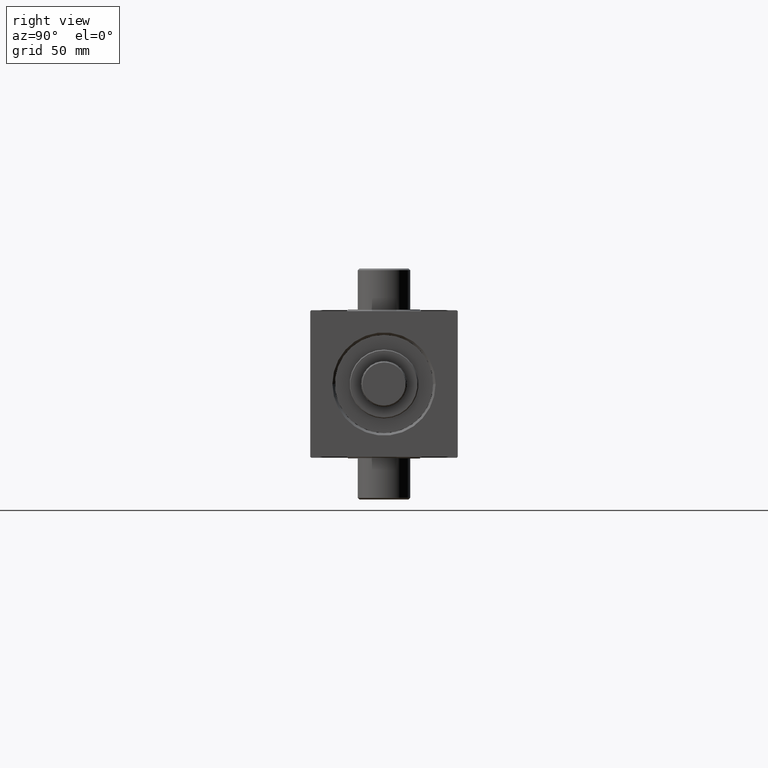
[diagram: clean part render]
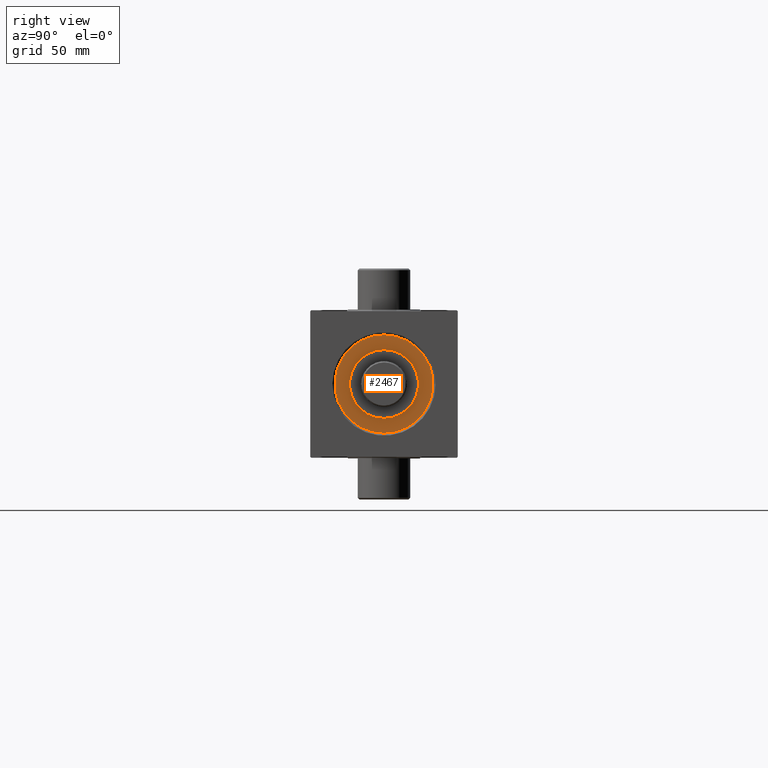
[diagram: same view with one face highlighted and labeled with its STEP entity id]
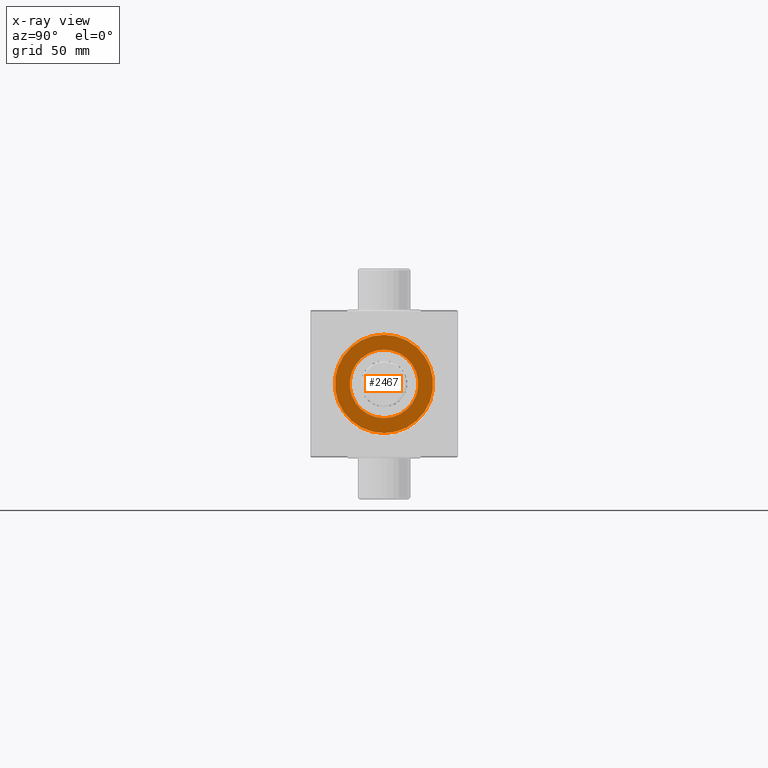
[diagram: x-ray of the same camera — body ghosted, the highlighted face saturated]
A machine part, right view. The second image highlights one B-rep face of the part: STEP entity #2467.
The next image is the same camera in x-ray: the body ghosted, the highlighted face saturated — about 0% of this face is hidden behind the body in this view.
In plain terms, the highlighted planar face has unit normal (1, 0, 0).
Its self-contained STEP definition (entity closure, byte-faithful):
#142 = VERTEX_POINT ( 'NONE', #2878 ) ;
#2467 = ADVANCED_FACE ( 'NONE', ( #24202, #13477 ), #13719, .T. ) ;
#2675 = EDGE_CURVE ( 'NONE', #18762, #17524, #28925, .T. ) ;
#2878 = CARTESIAN_POINT ( 'NONE',  ( 30.00000000000000000, 3.673940397442059178E-15, 26.69999999999999929 ) ) ;
#5164 = AXIS2_PLACEMENT_3D ( 'NONE', #37437, #18659, #40783 ) ;
#5269 = DIRECTION ( 'NONE',  ( 0.000000000000000000, 0.000000000000000000, 1.000000000000000000 ) ) ;
#5661 = ORIENTED_EDGE ( 'NONE', *, *, #2675, .F. ) ;
#6083 = CARTESIAN_POINT ( 'NONE',  ( 0.000000000000000000, 0.000000000000000000, 26.69999999999999929 ) ) ;
#8226 = ORIENTED_EDGE ( 'NONE', *, *, #31118, .T. ) ;
#9899 = DIRECTION ( 'NONE',  ( 1.000000000000000000, 0.000000000000000000, -0.000000000000000000 ) ) ;
#12054 = DIRECTION ( 'NONE',  ( 1.000000000000000000, 0.000000000000000000, 0.000000000000000000 ) ) ;
#13477 = FACE_OUTER_BOUND ( 'NONE', #34342, .T. ) ;
#13719 = PLANE ( 'NONE',  #28893 ) ;
#14005 = AXIS2_PLACEMENT_3D ( 'NONE', #46612, #20697, #16891 ) ;
#14107 = ORIENTED_EDGE ( 'NONE', *, *, #15872, .F. ) ;
#15872 = EDGE_CURVE ( 'NONE', #17524, #18762, #45128, .T. ) ;
#16076 = VERTEX_POINT ( 'NONE', #43092 ) ;
#16891 = DIRECTION ( 'NONE',  ( 1.000000000000000000, 0.000000000000000000, 0.000000000000000000 ) ) ;
#17524 = VERTEX_POINT ( 'NONE', #35401 ) ;
#18659 = DIRECTION ( 'NONE',  ( 0.000000000000000000, 0.000000000000000000, 1.000000000000000000 ) ) ;
#18762 = VERTEX_POINT ( 'NONE', #22149 ) ;
#18975 = CARTESIAN_POINT ( 'NONE',  ( 0.000000000000000000, 0.000000000000000000, 26.69999999999999929 ) ) ;
#20054 = DIRECTION ( 'NONE',  ( 1.000000000000000000, 0.000000000000000000, 0.000000000000000000 ) ) ;
#20378 = CIRCLE ( 'NONE', #5164, 30.00000000000000000 ) ;
#20633 = DIRECTION ( 'NONE',  ( 0.000000000000000000, 0.000000000000000000, 1.000000000000000000 ) ) ;
#20697 = DIRECTION ( 'NONE',  ( 0.000000000000000000, 0.000000000000000000, 1.000000000000000000 ) ) ;
#22149 = CARTESIAN_POINT ( 'NONE',  ( 21.00000000000000000, 2.571758278209441661E-15, 26.69999999999999929 ) ) ;
#24202 = FACE_BOUND ( 'NONE', #43854, .T. ) ;
#28893 = AXIS2_PLACEMENT_3D ( 'NONE', #6083, #20633, #9899 ) ;
#28925 = CIRCLE ( 'NONE', #38004, 21.00000000000000000 ) ;
#31118 = EDGE_CURVE ( 'NONE', #142, #16076, #20378, .T. ) ;
#32781 = CIRCLE ( 'NONE', #38081, 30.00000000000000000 ) ;
#34097 = CARTESIAN_POINT ( 'NONE',  ( 0.000000000000000000, 0.000000000000000000, 26.69999999999999929 ) ) ;
#34342 = EDGE_LOOP ( 'NONE', ( #44654, #8226 ) ) ;
#35401 = CARTESIAN_POINT ( 'NONE',  ( -21.00000000000000000, 0.000000000000000000, 26.69999999999999929 ) ) ;
#37437 = CARTESIAN_POINT ( 'NONE',  ( 0.000000000000000000, 0.000000000000000000, 26.69999999999999929 ) ) ;
#38004 = AXIS2_PLACEMENT_3D ( 'NONE', #18975, #40634, #12054 ) ;
#38081 = AXIS2_PLACEMENT_3D ( 'NONE', #34097, #5269, #20054 ) ;
#40634 = DIRECTION ( 'NONE',  ( 0.000000000000000000, 0.000000000000000000, 1.000000000000000000 ) ) ;
#40783 = DIRECTION ( 'NONE',  ( 1.000000000000000000, 0.000000000000000000, 0.000000000000000000 ) ) ;
#43092 = CARTESIAN_POINT ( 'NONE',  ( -30.00000000000000000, 0.000000000000000000, 26.69999999999999929 ) ) ;
#43146 = EDGE_CURVE ( 'NONE', #16076, #142, #32781, .T. ) ;
#43854 = EDGE_LOOP ( 'NONE', ( #14107, #5661 ) ) ;
#44654 = ORIENTED_EDGE ( 'NONE', *, *, #43146, .T. ) ;
#45128 = CIRCLE ( 'NONE', #14005, 21.00000000000000000 ) ;
#46612 = CARTESIAN_POINT ( 'NONE',  ( 0.000000000000000000, 0.000000000000000000, 26.69999999999999929 ) ) ;